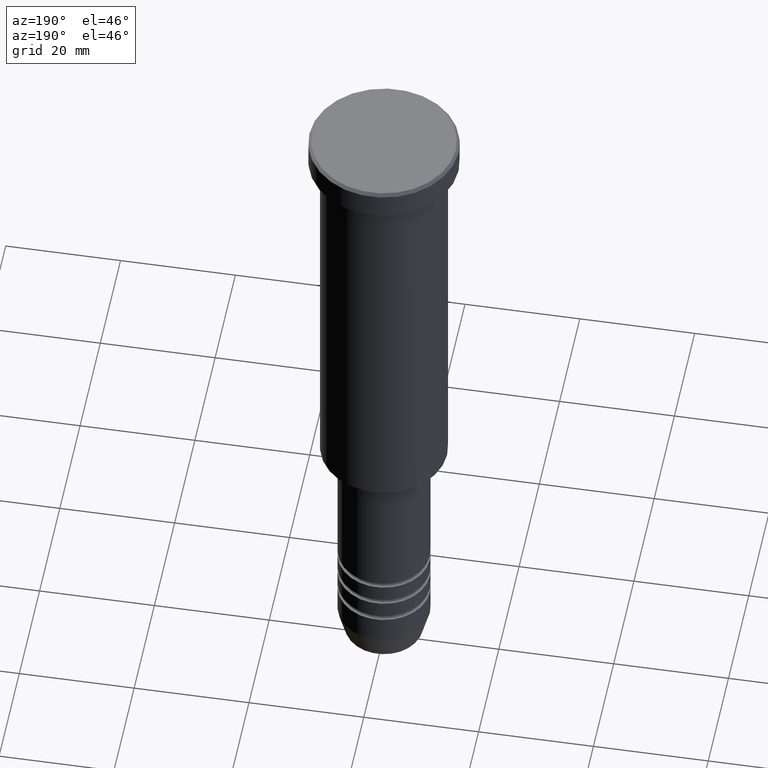
[diagram: clean part render]
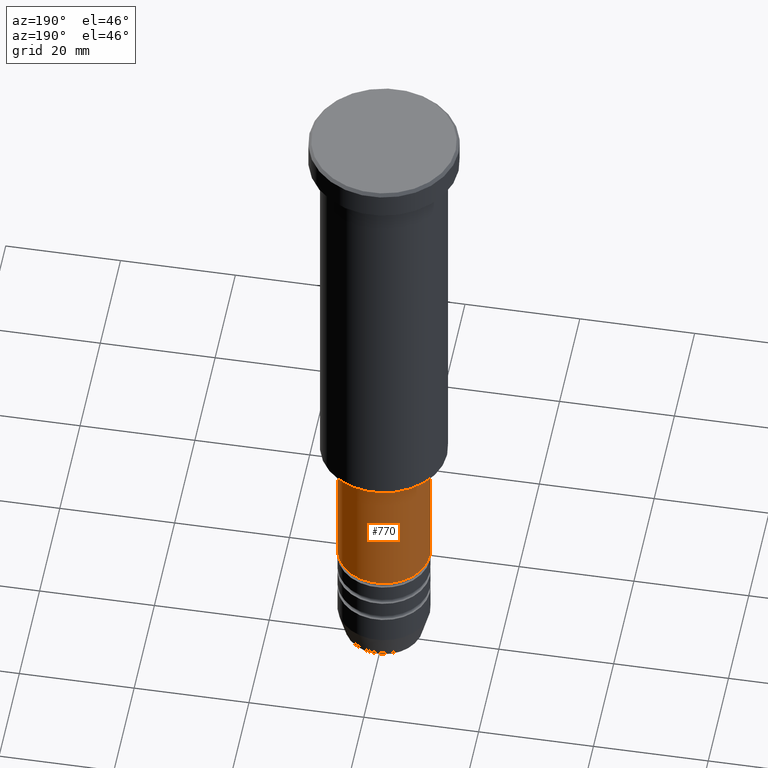
[diagram: same view with one face highlighted and labeled with its STEP entity id]
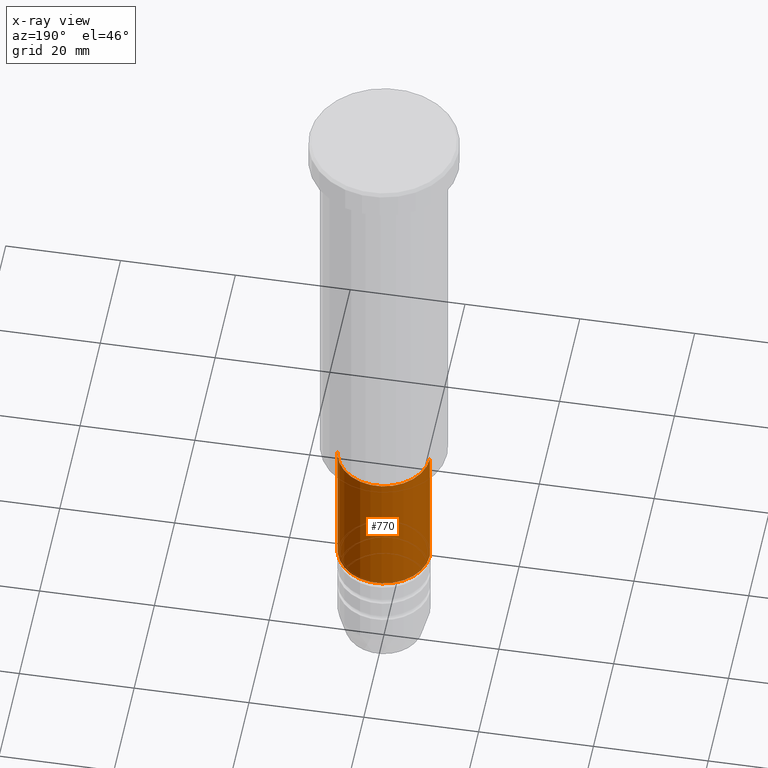
[diagram: x-ray of the same camera — body ghosted, the highlighted face saturated]
A machine part, auxiliary view. The second image highlights one B-rep face of the part: STEP entity #770.
The next image is the same camera in x-ray: the body ghosted, the highlighted face saturated — about 0% of this face is hidden behind the body in this view.
In plain terms, the highlighted cylindrical surface (partial cylindrical patch) has radius 8 mm, axis along (-0, -0, 1).
Its self-contained STEP definition (entity closure, byte-faithful):
#44 = AXIS2_PLACEMENT_3D ( 'NONE', #51, #867, #404 ) ;
#51 = CARTESIAN_POINT ( 'NONE',  ( 0.000000000000000000, 0.000000000000000000, -77.00000000000004263 ) ) ;
#100 = VERTEX_POINT ( 'NONE', #181 ) ;
#151 = DIRECTION ( 'NONE',  ( -0.000000000000000000, -0.000000000000000000, 1.000000000000000000 ) ) ;
#181 = CARTESIAN_POINT ( 'NONE',  ( 8.000000000000000000, 0.000000000000000000, -100.9999999999999716 ) ) ;
#215 = EDGE_CURVE ( 'NONE', #367, #420, #803, .T. ) ;
#219 = ORIENTED_EDGE ( 'NONE', *, *, #228, .T. ) ;
#228 = EDGE_CURVE ( 'NONE', #100, #367, #707, .T. ) ;
#264 = EDGE_LOOP ( 'NONE', ( #219, #893, #747, #637 ) ) ;
#267 = CARTESIAN_POINT ( 'NONE',  ( -8.000000000000000000, 9.797174393178825657E-16, 0.000000000000000000 ) ) ;
#288 = DIRECTION ( 'NONE',  ( -0.000000000000000000, -0.000000000000000000, 1.000000000000000000 ) ) ;
#312 = CIRCLE ( 'NONE', #44, 8.000000000000000000 ) ;
#317 = EDGE_CURVE ( 'NONE', #100, #654, #594, .T. ) ;
#333 = CYLINDRICAL_SURFACE ( 'NONE', #361, 8.000000000000000000 ) ;
#361 = AXIS2_PLACEMENT_3D ( 'NONE', #421, #151, #978 ) ;
#367 = VERTEX_POINT ( 'NONE', #1182 ) ;
#386 = DIRECTION ( 'NONE',  ( -0.000000000000000000, -0.000000000000000000, 1.000000000000000000 ) ) ;
#404 = DIRECTION ( 'NONE',  ( 1.000000000000000000, 0.000000000000000000, 0.000000000000000000 ) ) ;
#420 = VERTEX_POINT ( 'NONE', #1054 ) ;
#421 = CARTESIAN_POINT ( 'NONE',  ( 0.000000000000000000, 0.000000000000000000, 0.000000000000000000 ) ) ;
#447 = VECTOR ( 'NONE', #630, 1000.000000000000000 ) ;
#594 = LINE ( 'NONE', #653, #1124 ) ;
#617 = FACE_OUTER_BOUND ( 'NONE', #264, .T. ) ;
#630 = DIRECTION ( 'NONE',  ( -0.000000000000000000, -0.000000000000000000, 1.000000000000000000 ) ) ;
#637 = ORIENTED_EDGE ( 'NONE', *, *, #317, .F. ) ;
#653 = CARTESIAN_POINT ( 'NONE',  ( 8.000000000000000000, 0.000000000000000000, 0.000000000000000000 ) ) ;
#654 = VERTEX_POINT ( 'NONE', #1132 ) ;
#707 = CIRCLE ( 'NONE', #831, 8.000000000000000000 ) ;
#747 = ORIENTED_EDGE ( 'NONE', *, *, #1089, .F. ) ;
#770 = ADVANCED_FACE ( 'NONE', ( #617 ), #333, .T. ) ;
#803 = LINE ( 'NONE', #267, #447 ) ;
#808 = DIRECTION ( 'NONE',  ( 1.000000000000000000, 0.000000000000000000, 0.000000000000000000 ) ) ;
#831 = AXIS2_PLACEMENT_3D ( 'NONE', #1110, #288, #808 ) ;
#867 = DIRECTION ( 'NONE',  ( -0.000000000000000000, -0.000000000000000000, 1.000000000000000000 ) ) ;
#893 = ORIENTED_EDGE ( 'NONE', *, *, #215, .T. ) ;
#978 = DIRECTION ( 'NONE',  ( 1.000000000000000000, 0.000000000000000000, 0.000000000000000000 ) ) ;
#1054 = CARTESIAN_POINT ( 'NONE',  ( -8.000000000000000000, 9.797174393178825657E-16, -77.00000000000004263 ) ) ;
#1089 = EDGE_CURVE ( 'NONE', #654, #420, #312, .T. ) ;
#1110 = CARTESIAN_POINT ( 'NONE',  ( 0.000000000000000000, 0.000000000000000000, -100.9999999999999716 ) ) ;
#1124 = VECTOR ( 'NONE', #386, 1000.000000000000000 ) ;
#1132 = CARTESIAN_POINT ( 'NONE',  ( 8.000000000000000000, 0.000000000000000000, -77.00000000000004263 ) ) ;
#1182 = CARTESIAN_POINT ( 'NONE',  ( -8.000000000000000000, 9.797174393178825657E-16, -100.9999999999999716 ) ) ;